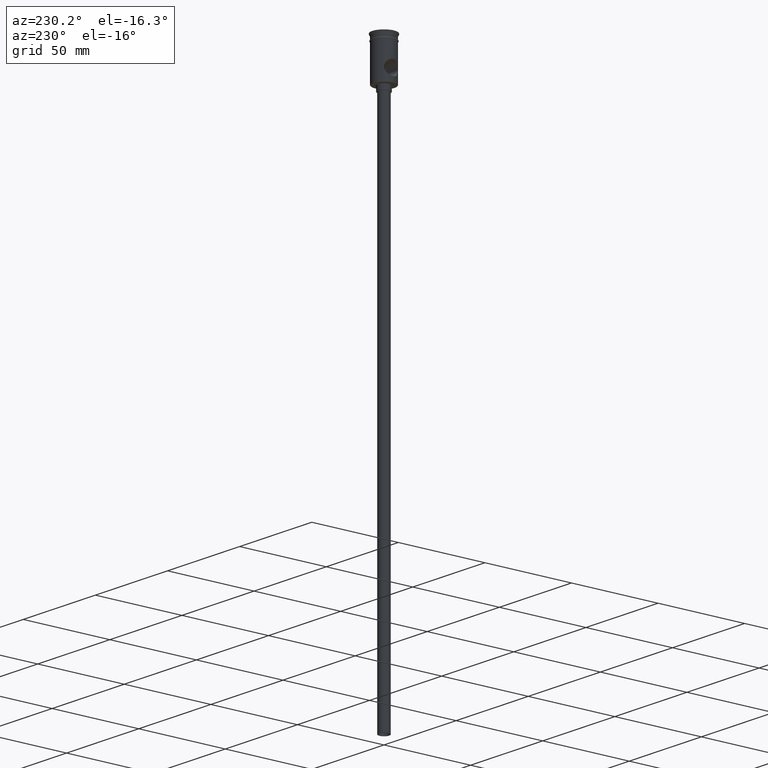
[diagram: clean part render]
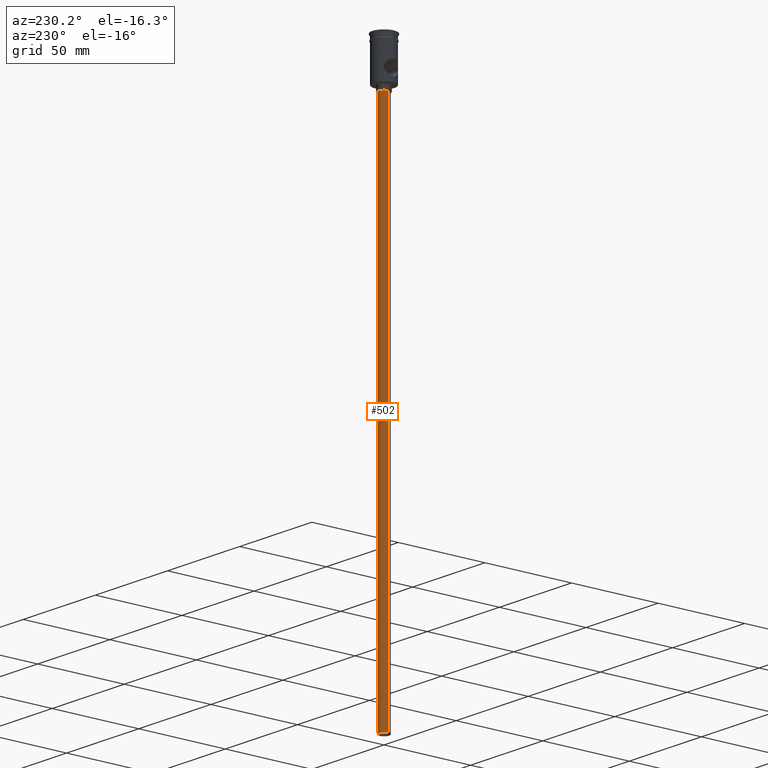
[diagram: same view with one face highlighted and labeled with its STEP entity id]
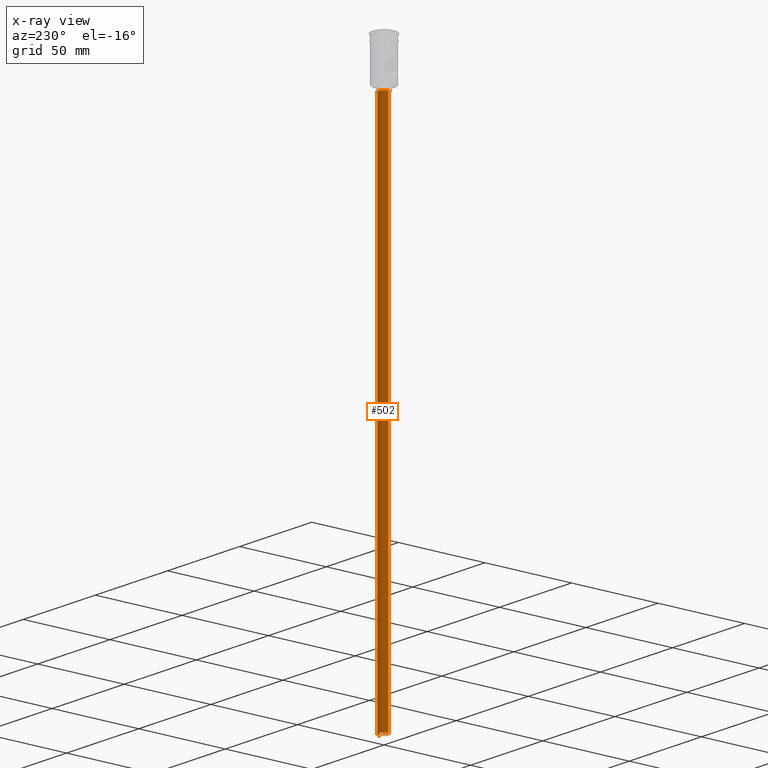
[diagram: x-ray of the same camera — body ghosted, the highlighted face saturated]
A machine part, auxiliary view. The second image highlights one B-rep face of the part: STEP entity #502.
The next image is the same camera in x-ray: the body ghosted, the highlighted face saturated — about 0% of this face is hidden behind the body in this view.
In plain terms, the highlighted cylindrical surface (edge-blend (fillet) strip) has radius 3 mm, axis along (-0, -0, 1).
Its self-contained STEP definition (entity closure, byte-faithful):
#15 = EDGE_LOOP ( 'NONE', ( #1171, #1411, #1291, #602 ) ) ;
#20 = VECTOR ( 'NONE', #845, 1000.000000000000000 ) ;
#33 = DIRECTION ( 'NONE',  ( 1.000000000000000000, 0.000000000000000000, 0.000000000000000000 ) ) ;
#106 = CARTESIAN_POINT ( 'NONE',  ( -3.000000000000000444, 3.673940397442060361E-16, -27.00000000000000000 ) ) ;
#150 = CYLINDRICAL_SURFACE ( 'NONE', #1187, 3.000000000000000444 ) ;
#212 = EDGE_CURVE ( 'NONE', #984, #836, #358, .T. ) ;
#249 = DIRECTION ( 'NONE',  ( -0.000000000000000000, -0.000000000000000000, 1.000000000000000000 ) ) ;
#289 = CARTESIAN_POINT ( 'NONE',  ( 3.000000000000000444, 0.000000000000000000, -27.00000000000000000 ) ) ;
#329 = AXIS2_PLACEMENT_3D ( 'NONE', #891, #1344, #350 ) ;
#347 = LINE ( 'NONE', #427, #424 ) ;
#350 = DIRECTION ( 'NONE',  ( -1.000000000000000000, 0.000000000000000000, 0.000000000000000000 ) ) ;
#358 = CIRCLE ( 'NONE', #329, 3.000000000000000444 ) ;
#411 = DIRECTION ( 'NONE',  ( -1.000000000000000000, 0.000000000000000000, 0.000000000000000000 ) ) ;
#424 = VECTOR ( 'NONE', #695, 1000.000000000000000 ) ;
#427 = CARTESIAN_POINT ( 'NONE',  ( 3.000000000000000444, 0.000000000000000000, -324.0000000000000000 ) ) ;
#455 = EDGE_CURVE ( 'NONE', #1020, #984, #1301, .T. ) ;
#487 = FACE_OUTER_BOUND ( 'NONE', #15, .T. ) ;
#502 = ADVANCED_FACE ( 'NONE', ( #487 ), #150, .T. ) ;
#532 = DIRECTION ( 'NONE',  ( 0.000000000000000000, 0.000000000000000000, -1.000000000000000000 ) ) ;
#602 = ORIENTED_EDGE ( 'NONE', *, *, #1044, .F. ) ;
#663 = VERTEX_POINT ( 'NONE', #1216 ) ;
#695 = DIRECTION ( 'NONE',  ( -0.000000000000000000, -0.000000000000000000, 1.000000000000000000 ) ) ;
#785 = AXIS2_PLACEMENT_3D ( 'NONE', #1426, #532, #411 ) ;
#821 = CARTESIAN_POINT ( 'NONE',  ( 0.000000000000000000, 0.000000000000000000, -324.0000000000000000 ) ) ;
#827 = CARTESIAN_POINT ( 'NONE',  ( -3.000000000000000444, 3.673940397442060361E-16, -324.0000000000000000 ) ) ;
#836 = VERTEX_POINT ( 'NONE', #289 ) ;
#845 = DIRECTION ( 'NONE',  ( -0.000000000000000000, -0.000000000000000000, 1.000000000000000000 ) ) ;
#891 = CARTESIAN_POINT ( 'NONE',  ( 0.000000000000000000, 0.000000000000000000, -27.00000000000000000 ) ) ;
#984 = VERTEX_POINT ( 'NONE', #106 ) ;
#1020 = VERTEX_POINT ( 'NONE', #1345 ) ;
#1044 = EDGE_CURVE ( 'NONE', #663, #836, #347, .T. ) ;
#1171 = ORIENTED_EDGE ( 'NONE', *, *, #1221, .F. ) ;
#1187 = AXIS2_PLACEMENT_3D ( 'NONE', #821, #249, #33 ) ;
#1216 = CARTESIAN_POINT ( 'NONE',  ( 3.000000000000000444, 0.000000000000000000, -324.0000000000000000 ) ) ;
#1221 = EDGE_CURVE ( 'NONE', #1020, #663, #1306, .T. ) ;
#1291 = ORIENTED_EDGE ( 'NONE', *, *, #212, .T. ) ;
#1301 = LINE ( 'NONE', #827, #20 ) ;
#1306 = CIRCLE ( 'NONE', #785, 3.000000000000000444 ) ;
#1344 = DIRECTION ( 'NONE',  ( 0.000000000000000000, 0.000000000000000000, -1.000000000000000000 ) ) ;
#1345 = CARTESIAN_POINT ( 'NONE',  ( -3.000000000000000444, 3.673940397442060361E-16, -324.0000000000000000 ) ) ;
#1411 = ORIENTED_EDGE ( 'NONE', *, *, #455, .T. ) ;
#1426 = CARTESIAN_POINT ( 'NONE',  ( 0.000000000000000000, 0.000000000000000000, -324.0000000000000000 ) ) ;